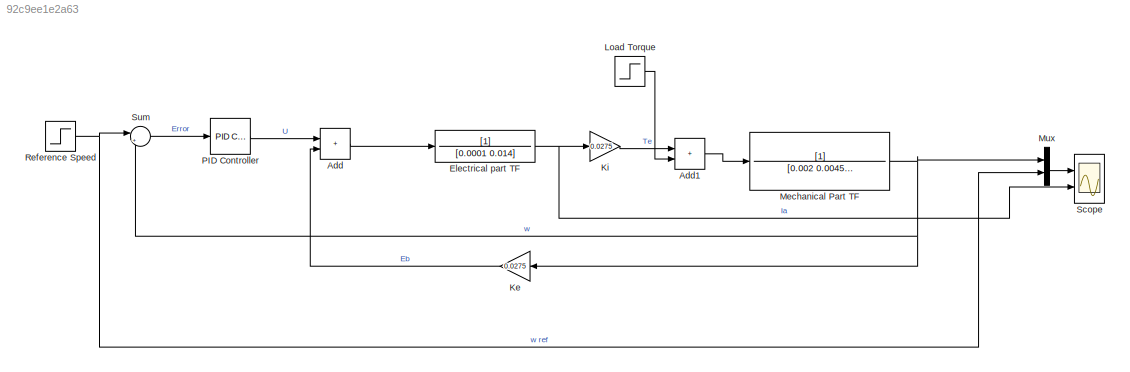
MODEL slx_92c9ee1e2a63
KIND model
CONFIG AbsTol = auto
CONFIG EnableMultiTasking = off
CONFIG FixedStep = auto
CONFIG MaxStep = auto
CONFIG MinStep = auto
CONFIG RelTol = 1e-3
CONFIG SampleTimeConstraint = Unconstrained
CONFIG Solver = VariableStepAuto
CONFIG SolverName = VariableStepAuto
CONFIG StartTime = 0.0
CONFIG StopTime = 10.0
BLOCK [Sum] Add
  IconShape = rectangular
  Ports = [2, 1]
BLOCK [Sum] Add1
  IconShape = rectangular
  Ports = [2, 1]
BLOCK [TransferFcn] Electrical part TF
  Denominator = [0.0001 0.014]
BLOCK [Gain] Ke
  Gain = 0.0275
  NameLocation = top
BLOCK [Gain] Ki
  Gain = 0.0275
BLOCK [Step] Load Torque
  After = 0
  SampleTime = 0
  Time = 0.1
BLOCK [TransferFcn] Mechanical Part TF
  Denominator = [0.002 0.004586]
BLOCK [Mux] Mux
  DisplayOption = bar
  Inputs = 2
  Ports = [2, 1]
BLOCK [Reference] PID Controller  REF=simulink/Continuous/PID Controller
  Ports = [1, 1]
  SourceBlock = simulink/Continuous/PID Controller
  SourceProductBaseCode = SL
  SourceType = PID 1dof
BLOCK [Step] Reference Speed
  SampleTime = 0
BLOCK [Scope] Scope
  Floating = off
  NumInputPorts = 2
  Ports = [2]
  ScopeSpecificationString = Simulink.scopes.TimeScopeBlockCfg('CurrentConfiguration', extmgr.ConfigurationSet(extmgr.Configuration('Core','General UI',true),extmgr.Configuration('Core','Source UI',true),extmgr.Configuration('Sources','WiredSimulink',true),extmgr.Configuration('Visuals','Time Domain',true,'SerializedDisplays',{struct('MinYLimReal','-0.19392','MaxYLimReal','1.74525','YLabelReal','','MinYLimMag','0.00000','MaxY...<+1976ch>
BLOCK [Sum] Sum
  Inputs = |+-
  Ports = [2, 1]
LINE Add1:1 -> Mechanical Part TF:1
LINE Add:1 -> Electrical part TF:1
NET Electrical part TF:1 -> Ki:1, Scope:2
LINE Ke:1 -> Add:2
LINE Ki:1 -> Add1:1
LINE Load Torque:1 -> Add1:2
NET Mechanical Part TF:1 -> Ke:1, Mux:1, Sum:2
LINE Mux:1 -> Scope:1
LINE PID Controller:1 -> Add:1
NET Reference Speed:1 -> Mux:2, Sum:1
LINE Sum:1 -> PID Controller:1
note: NET lines group one-source signal fan-out (src -> all destinations, sorted); 1:1 wires keep LINE
